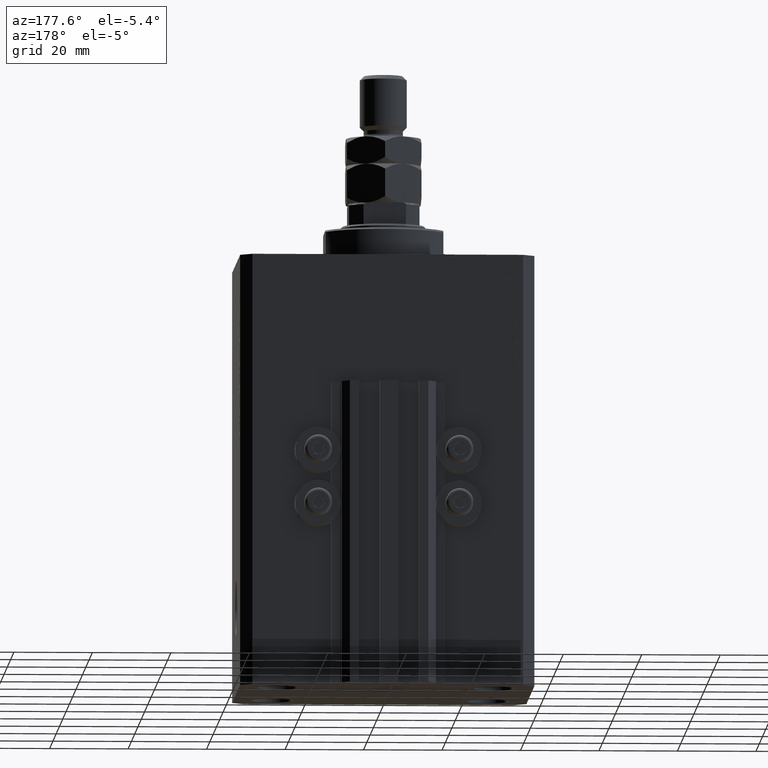
[diagram: clean part render]
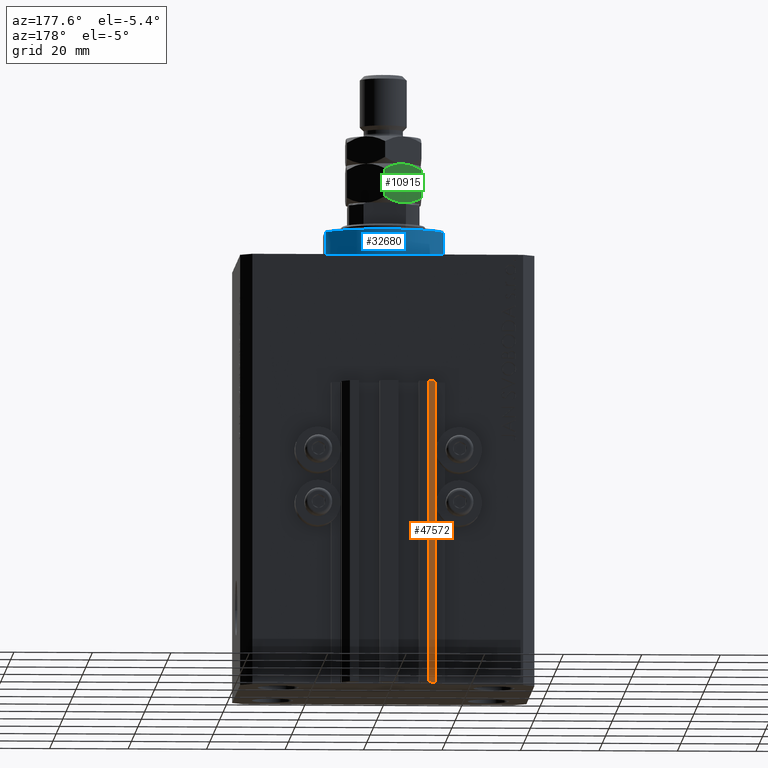
[diagram: same view with three faces highlighted in distinct colors, each labeled with its STEP entity id]
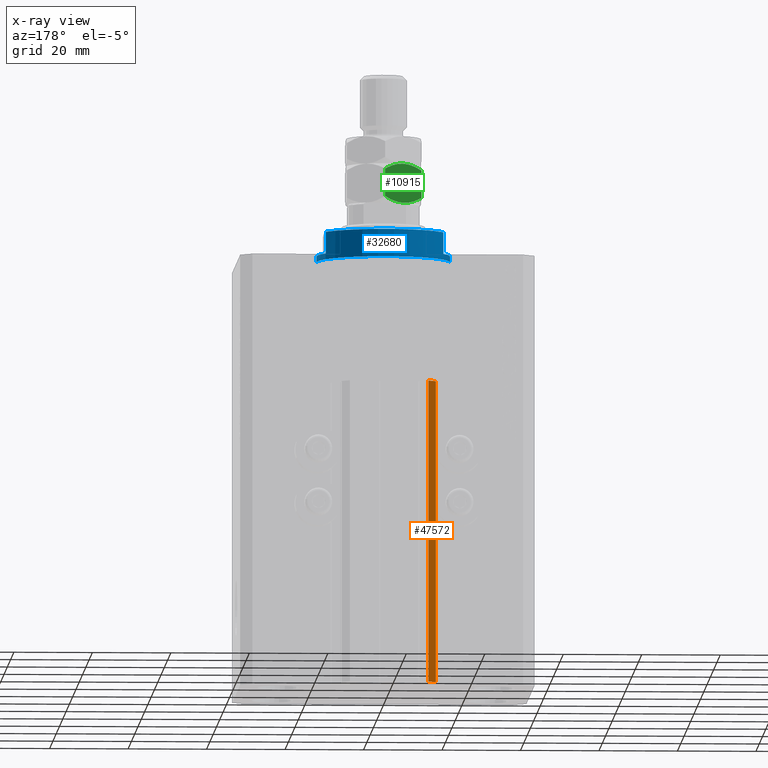
[diagram: x-ray of the same camera — body ghosted, the three highlighted faces saturated]
A machine part, auxiliary view with three faces highlighted in distinct colors.
The next image is the same camera in x-ray (body ghosted, the three faces saturated) — at least one of them is partly hidden behind the body in this view.
Their STEP definitions:

[orange] entity #47572 — the highlighted planar face has unit normal (-0.7071, 0.7071, 0).
#170 = VECTOR ( 'NONE', #43407, 1000.000000000000227 ) ;
#5188 = CARTESIAN_POINT ( 'NONE',  ( -12.00000000000000000, 33.49999999999998579, -110.0000000000000000 ) ) ;
#5846 = CARTESIAN_POINT ( 'NONE',  ( -10.00000000000000000, 35.50000000000000000, -110.0000000000000000 ) ) ;
#6443 = VERTEX_POINT ( 'NONE', #5188 ) ;
#8134 = DIRECTION ( 'NONE',  ( 0.000000000000000000, 0.000000000000000000, 1.000000000000000000 ) ) ;
#8465 = CARTESIAN_POINT ( 'NONE',  ( -10.00000000000000000, 35.50000000000000000, -33.00000000000000000 ) ) ;
#9984 = VECTOR ( 'NONE', #25163, 1000.000000000000000 ) ;
#10099 = VERTEX_POINT ( 'NONE', #41039 ) ;
#10994 = ORIENTED_EDGE ( 'NONE', *, *, #30362, .T. ) ;
#11456 = DIRECTION ( 'NONE',  ( -0.7071067811865460184, -0.7071067811865490160, 0.000000000000000000 ) ) ;
#13259 = DIRECTION ( 'NONE',  ( -0.7071067811865490160, 0.7071067811865461294, 0.000000000000000000 ) ) ;
#16287 = VERTEX_POINT ( 'NONE', #24324 ) ;
#17784 = CARTESIAN_POINT ( 'NONE',  ( -10.00000000000000000, 35.50000000000000000, -110.0000000000000000 ) ) ;
#18359 = VECTOR ( 'NONE', #11456, 1000.000000000000227 ) ;
#19245 = ORIENTED_EDGE ( 'NONE', *, *, #48274, .F. ) ;
#20465 = CARTESIAN_POINT ( 'NONE',  ( -10.00000000000000000, 35.50000000000000000, -110.0000000000000000 ) ) ;
#20656 = FACE_OUTER_BOUND ( 'NONE', #21713, .T. ) ;
#20895 = DIRECTION ( 'NONE',  ( -0.7071067811865460184, -0.7071067811865489050, 0.000000000000000000 ) ) ;
#21713 = EDGE_LOOP ( 'NONE', ( #19245, #45127, #30813, #10994 ) ) ;
#24324 = CARTESIAN_POINT ( 'NONE',  ( -12.00000000000000000, 33.49999999999998579, -33.00000000000000000 ) ) ;
#24891 = LINE ( 'NONE', #20465, #170 ) ;
#25163 = DIRECTION ( 'NONE',  ( 0.000000000000000000, 0.000000000000000000, 1.000000000000000000 ) ) ;
#25335 = PLANE ( 'NONE',  #41967 ) ;
#25363 = EDGE_CURVE ( 'NONE', #10099, #41197, #25909, .T. ) ;
#25893 = CARTESIAN_POINT ( 'NONE',  ( -10.00000000000000000, 35.50000000000000000, -33.00000000000000000 ) ) ;
#25909 = LINE ( 'NONE', #17784, #9984 ) ;
#30362 = EDGE_CURVE ( 'NONE', #6443, #16287, #38705, .T. ) ;
#30813 = ORIENTED_EDGE ( 'NONE', *, *, #46460, .T. ) ;
#37832 = LINE ( 'NONE', #8465, #18359 ) ;
#38230 = CARTESIAN_POINT ( 'NONE',  ( -12.00000000000000000, 33.49999999999998579, -110.0000000000000000 ) ) ;
#38705 = LINE ( 'NONE', #38230, #47064 ) ;
#41039 = CARTESIAN_POINT ( 'NONE',  ( -10.00000000000000000, 35.50000000000000000, -110.0000000000000000 ) ) ;
#41197 = VERTEX_POINT ( 'NONE', #25893 ) ;
#41967 = AXIS2_PLACEMENT_3D ( 'NONE', #5846, #13259, #20895 ) ;
#43407 = DIRECTION ( 'NONE',  ( -0.7071067811865460184, -0.7071067811865490160, 0.000000000000000000 ) ) ;
#45127 = ORIENTED_EDGE ( 'NONE', *, *, #25363, .F. ) ;
#46460 = EDGE_CURVE ( 'NONE', #10099, #6443, #24891, .T. ) ;
#47064 = VECTOR ( 'NONE', #8134, 1000.000000000000000 ) ;
#47572 = ADVANCED_FACE ( 'NONE', ( #20656 ), #25335, .T. ) ;
#48274 = EDGE_CURVE ( 'NONE', #41197, #16287, #37832, .T. ) ;

[blue] entity #32680 — the highlighted cylindrical surface (partial cylindrical patch) has radius 17 mm, axis along (0, 0, -1).
#1572 = ORIENTED_EDGE ( 'NONE', *, *, #47519, .T. ) ;
#4316 = EDGE_CURVE ( 'NONE', #10806, #42552, #33387, .T. ) ;
#4879 = DIRECTION ( 'NONE',  ( -0.000000000000000000, -0.000000000000000000, 1.000000000000000000 ) ) ;
#6104 = CARTESIAN_POINT ( 'NONE',  ( -14.99999999999999645, 8.000000000000003553, -2.000000000000000000 ) ) ;
#7557 = CYLINDRICAL_SURFACE ( 'NONE', #21939, 17.00000000000000000 ) ;
#7750 = CARTESIAN_POINT ( 'NONE',  ( -15.00000000000000000, 8.000000000000001776, -7.500000000000007105 ) ) ;
#7875 = AXIS2_PLACEMENT_3D ( 'NONE', #47473, #10205, #47717 ) ;
#8260 = LINE ( 'NONE', #43266, #8470 ) ;
#8470 = VECTOR ( 'NONE', #42539, 1000.000000000000000 ) ;
#9171 = VERTEX_POINT ( 'NONE', #16415 ) ;
#9566 = ORIENTED_EDGE ( 'NONE', *, *, #14466, .T. ) ;
#10205 = DIRECTION ( 'NONE',  ( -0.000000000000000000, -0.000000000000000000, -1.000000000000000000 ) ) ;
#10760 = CARTESIAN_POINT ( 'NONE',  ( 15.00000000000000000, 8.000000000000001776, -7.500000000000007105 ) ) ;
#10806 = VERTEX_POINT ( 'NONE', #10760 ) ;
#11159 = VECTOR ( 'NONE', #28652, 1000.000000000000000 ) ;
#13878 = DIRECTION ( 'NONE',  ( -0.000000000000000000, -0.000000000000000000, 1.000000000000000000 ) ) ;
#14466 = EDGE_CURVE ( 'NONE', #42552, #15899, #40005, .T. ) ;
#15612 = ORIENTED_EDGE ( 'NONE', *, *, #44431, .F. ) ;
#15899 = VERTEX_POINT ( 'NONE', #6104 ) ;
#16415 = CARTESIAN_POINT ( 'NONE',  ( -17.00000000000000000, 2.081899558550500280E-15, -0.5000000000000004441 ) ) ;
#17264 = CARTESIAN_POINT ( 'NONE',  ( 0.000000000000000000, 0.000000000000000000, -8.000000000000000000 ) ) ;
#17798 = LINE ( 'NONE', #32584, #11159 ) ;
#18763 = CARTESIAN_POINT ( 'NONE',  ( 17.00000000000000000, 0.000000000000000000, -2.000000000000000000 ) ) ;
#19781 = CARTESIAN_POINT ( 'NONE',  ( 0.000000000000000000, 0.000000000000000000, -2.000000000000000000 ) ) ;
#21939 = AXIS2_PLACEMENT_3D ( 'NONE', #17264, #22603, #28848 ) ;
#22603 = DIRECTION ( 'NONE',  ( -0.000000000000000000, -0.000000000000000000, 1.000000000000000000 ) ) ;
#22710 = EDGE_LOOP ( 'NONE', ( #44788, #1572, #41323, #15612, #42007, #22937, #32500, #9566 ) ) ;
#22937 = ORIENTED_EDGE ( 'NONE', *, *, #31102, .F. ) ;
#22951 = AXIS2_PLACEMENT_3D ( 'NONE', #28347, #40166, #32774 ) ;
#23701 = DIRECTION ( 'NONE',  ( -1.000000000000000000, 0.000000000000000000, 0.000000000000000000 ) ) ;
#24057 = CARTESIAN_POINT ( 'NONE',  ( 0.000000000000000000, 0.000000000000000000, -7.500000000000007105 ) ) ;
#24366 = VERTEX_POINT ( 'NONE', #31584 ) ;
#28347 = CARTESIAN_POINT ( 'NONE',  ( 0.000000000000000000, 0.000000000000000000, -2.000000000000000000 ) ) ;
#28652 = DIRECTION ( 'NONE',  ( -0.000000000000000000, -0.000000000000000000, 1.000000000000000000 ) ) ;
#28848 = DIRECTION ( 'NONE',  ( 1.000000000000000000, 0.000000000000000000, 0.000000000000000000 ) ) ;
#29152 = CIRCLE ( 'NONE', #7875, 17.00000000000000000 ) ;
#29454 = AXIS2_PLACEMENT_3D ( 'NONE', #24057, #31464, #39831 ) ;
#30942 = VECTOR ( 'NONE', #4879, 1000.000000000000000 ) ;
#31102 = EDGE_CURVE ( 'NONE', #10806, #44660, #8260, .T. ) ;
#31317 = VERTEX_POINT ( 'NONE', #35736 ) ;
#31464 = DIRECTION ( 'NONE',  ( 0.000000000000000000, 0.000000000000000000, 1.000000000000000000 ) ) ;
#31584 = CARTESIAN_POINT ( 'NONE',  ( 17.00000000000000000, 0.000000000000000000, -0.5000000000000004441 ) ) ;
#32500 = ORIENTED_EDGE ( 'NONE', *, *, #4316, .T. ) ;
#32584 = CARTESIAN_POINT ( 'NONE',  ( 17.00000000000000000, 0.000000000000000000, -8.000000000000000000 ) ) ;
#32680 = ADVANCED_FACE ( 'NONE', ( #40430 ), #7557, .T. ) ;
#32774 = DIRECTION ( 'NONE',  ( -1.000000000000000000, 0.000000000000000000, 0.000000000000000000 ) ) ;
#33194 = CIRCLE ( 'NONE', #22951, 17.00000000000000000 ) ;
#33387 = CIRCLE ( 'NONE', #29454, 17.00000000000000000 ) ;
#34500 = LINE ( 'NONE', #38432, #30942 ) ;
#34676 = EDGE_CURVE ( 'NONE', #44660, #34875, #38539, .T. ) ;
#34814 = DIRECTION ( 'NONE',  ( 0.000000000000000000, 0.000000000000000000, -1.000000000000000000 ) ) ;
#34875 = VERTEX_POINT ( 'NONE', #18763 ) ;
#35736 = CARTESIAN_POINT ( 'NONE',  ( -17.00000000000000000, 2.081899558550500280E-15, -2.000000000000000000 ) ) ;
#36168 = AXIS2_PLACEMENT_3D ( 'NONE', #19781, #34814, #23701 ) ;
#36303 = CARTESIAN_POINT ( 'NONE',  ( -15.00000000000000000, 8.000000000000001776, -8.000000000000000000 ) ) ;
#37746 = EDGE_CURVE ( 'NONE', #9171, #24366, #29152, .T. ) ;
#38432 = CARTESIAN_POINT ( 'NONE',  ( -17.00000000000000000, 2.081899558550500280E-15, -8.000000000000000000 ) ) ;
#38539 = CIRCLE ( 'NONE', #36168, 17.00000000000000000 ) ;
#39831 = DIRECTION ( 'NONE',  ( -1.000000000000000000, 0.000000000000000000, 0.000000000000000000 ) ) ;
#40005 = LINE ( 'NONE', #36303, #42504 ) ;
#40166 = DIRECTION ( 'NONE',  ( 0.000000000000000000, 0.000000000000000000, -1.000000000000000000 ) ) ;
#40430 = FACE_OUTER_BOUND ( 'NONE', #22710, .T. ) ;
#40890 = EDGE_CURVE ( 'NONE', #31317, #15899, #33194, .T. ) ;
#41323 = ORIENTED_EDGE ( 'NONE', *, *, #37746, .T. ) ;
#42007 = ORIENTED_EDGE ( 'NONE', *, *, #34676, .F. ) ;
#42504 = VECTOR ( 'NONE', #13878, 1000.000000000000000 ) ;
#42539 = DIRECTION ( 'NONE',  ( -0.000000000000000000, -0.000000000000000000, 1.000000000000000000 ) ) ;
#42552 = VERTEX_POINT ( 'NONE', #7750 ) ;
#43266 = CARTESIAN_POINT ( 'NONE',  ( 15.00000000000000000, 8.000000000000001776, -8.000000000000000000 ) ) ;
#44431 = EDGE_CURVE ( 'NONE', #34875, #24366, #17798, .T. ) ;
#44660 = VERTEX_POINT ( 'NONE', #46609 ) ;
#44788 = ORIENTED_EDGE ( 'NONE', *, *, #40890, .F. ) ;
#46609 = CARTESIAN_POINT ( 'NONE',  ( 14.99999999999999645, 8.000000000000003553, -2.000000000000000000 ) ) ;
#47473 = CARTESIAN_POINT ( 'NONE',  ( 0.000000000000000000, 0.000000000000000000, -0.5000000000000004441 ) ) ;
#47519 = EDGE_CURVE ( 'NONE', #31317, #9171, #34500, .T. ) ;
#47717 = DIRECTION ( 'NONE',  ( 1.000000000000000000, 0.000000000000000000, 0.000000000000000000 ) ) ;

[green] entity #10915 — the highlighted planar face has unit normal (0.5, -0.866, 0).
#654 = VERTEX_POINT ( 'NONE', #22332 ) ;
#1174 = CARTESIAN_POINT ( 'NONE',  ( -4.749999999999993783, 8.227241335952166779, 10.00000000000000000 ) ) ;
#1363 = CARTESIAN_POINT ( 'NONE',  ( -6.388382028668171841, 7.281321030665156790, 9.854124384224531852 ) ) ;
#2559 = LINE ( 'NONE', #17134, #10221 ) ;
#2738 = VERTEX_POINT ( 'NONE', #10057 ) ;
#3134 = ORIENTED_EDGE ( 'NONE', *, *, #38007, .F. ) ;
#3744 = CARTESIAN_POINT ( 'NONE',  ( -9.500000000000000000, 5.484827557301450440, 1.469655114602887114 ) ) ;
#4160 = CARTESIAN_POINT ( 'NONE',  ( -3.911732050025008789, 8.711215562523269895, 9.962294231267003752 ) ) ;
#4165 = CARTESIAN_POINT ( 'NONE',  ( -0.7440058743609621050, 10.54010312276192174, 1.040103122761827148 ) ) ;
#5134 = ORIENTED_EDGE ( 'NONE', *, *, #22395, .T. ) ;
#7614 = CARTESIAN_POINT ( 'NONE',  ( -3.111617971331824162, 9.173161641239182984, 0.1458756157754679816 ) ) ;
#8569 = CARTESIAN_POINT ( 'NONE',  ( -4.333978297711722938, 8.467431577757031036, 9.999999999999998224 ) ) ;
#10057 = CARTESIAN_POINT ( 'NONE',  ( -3.412354640325339130E-17, 10.96965511460288667, 8.530344885397118659 ) ) ;
#10221 = VECTOR ( 'NONE', #36099, 1000.000000000000000 ) ;
#10416 = CARTESIAN_POINT ( 'NONE',  ( -5.588267949974988547, 7.743267109381076096, 0.03770576873300184734 ) ) ;
#10915 = ADVANCED_FACE ( 'NONE', ( #32708 ), #19574, .F. ) ;
#11565 = EDGE_CURVE ( 'NONE', #654, #42720, #42400, .T. ) ;
#11994 = EDGE_LOOP ( 'NONE', ( #34348, #19369, #3134, #37500, #5134, #21363 ) ) ;
#12966 = CARTESIAN_POINT ( 'NONE',  ( -9.500000000000000000, 5.484827557301450440, 8.530344885397113330 ) ) ;
#14534 = EDGE_CURVE ( 'NONE', #37938, #654, #30481, .T. ) ;
#14625 = CARTESIAN_POINT ( 'NONE',  ( -7.993405681187618406, 6.354660192827338960, 0.6741748824712797683 ) ) ;
#14863 = CARTESIAN_POINT ( 'NONE',  ( -8.755131854751338594, 5.914877381471542961, 1.039605290432796147 ) ) ;
#15107 = CARTESIAN_POINT ( 'NONE',  ( -6.809745054052670277, 7.038046974532860212, 0.2834621384311906689 ) ) ;
#15523 = CARTESIAN_POINT ( 'NONE',  ( -2.690254945947323506, 9.416435697371474234, 9.716537861568806278 ) ) ;
#17134 = CARTESIAN_POINT ( 'NONE',  ( -9.500000000000000000, 5.484827557301449552, 10.00000000000000000 ) ) ;
#17506 = CARTESIAN_POINT ( 'NONE',  ( 0.000000000000000000, 10.96965511460288667, 10.00000000000000000 ) ) ;
#18804 = CARTESIAN_POINT ( 'NONE',  ( -6.408273631871772125, 7.269836608200945349, 0.1797418547120365750 ) ) ;
#19369 = ORIENTED_EDGE ( 'NONE', *, *, #37669, .F. ) ;
#19574 = PLANE ( 'NONE',  #25068 ) ;
#20384 = CARTESIAN_POINT ( 'NONE',  ( -4.749999999999993783, 8.227241335952166779, 10.00000000000000000 ) ) ;
#21363 = ORIENTED_EDGE ( 'NONE', *, *, #11565, .F. ) ;
#22001 = B_SPLINE_CURVE_WITH_KNOTS ( 'NONE', 3,
 ( #40975, #34724, #42374, #15523, #34491, #4160, #8569, #1174 ),
 .UNSPECIFIED., .F., .F.,
 ( 4, 2, 2, 4 ),
 ( 2.544312669947217931E-07, 0.002843014744722341131, 0.004264394901450013070, 0.005685775058177684575 ),
 .UNSPECIFIED. ) ;
#22332 = CARTESIAN_POINT ( 'NONE',  ( -4.749999999999995559, 8.227241335952170331, 0.000000000000000000 ) ) ;
#22395 = EDGE_CURVE ( 'NONE', #2738, #42720, #39681, .T. ) ;
#22663 = CARTESIAN_POINT ( 'NONE',  ( -1.509821400858455398, 10.09795932238899852, 0.6716369694512650534 ) ) ;
#23509 = EDGE_CURVE ( 'NONE', #2738, #36473, #22001, .T. ) ;
#23858 = VECTOR ( 'NONE', #47093, 1000.000000000000000 ) ;
#25068 = AXIS2_PLACEMENT_3D ( 'NONE', #45241, #41773, #26980 ) ;
#26135 = CARTESIAN_POINT ( 'NONE',  ( 7.043584025308272669E-16, 10.96965511460288667, 1.469655114602882007 ) ) ;
#26980 = DIRECTION ( 'NONE',  ( 0.8660254037844389297, 0.4999999999999994449, 0.000000000000000000 ) ) ;
#27719 = CARTESIAN_POINT ( 'NONE',  ( 7.043584025308272669E-16, 10.96965511460288667, 1.469655114602882007 ) ) ;
#28667 = CARTESIAN_POINT ( 'NONE',  ( -4.749999999999993783, 8.227241335952166779, 10.00000000000000000 ) ) ;
#29896 = CARTESIAN_POINT ( 'NONE',  ( -4.749999999999995559, 8.227241335952170331, 0.000000000000000000 ) ) ;
#30481 = B_SPLINE_CURVE_WITH_KNOTS ( 'NONE', 3,
 ( #3744, #14863, #14625, #15107, #18804, #10416, #41233, #29896 ),
 .UNSPECIFIED., .F., .F.,
 ( 4, 2, 2, 4 ),
 ( 2.544312669946945821E-07, 0.002843014744722347636, 0.004264394901450021744, 0.005685775058177695851 ),
 .UNSPECIFIED. ) ;
#32695 = B_SPLINE_CURVE_WITH_KNOTS ( 'NONE', 3,
 ( #28667, #35641, #1363, #42810, #36123, #12966 ),
 .UNSPECIFIED., .F., .F.,
 ( 4, 2, 4 ),
 ( 0.005685775058177684575, 0.008508623398180318459, 0.01133147173818295321 ),
 .UNSPECIFIED. ) ;
#32708 = FACE_OUTER_BOUND ( 'NONE', #11994, .T. ) ;
#34011 = CARTESIAN_POINT ( 'NONE',  ( -3.923784602134044341, 8.704257018318687145, 8.233160247311796338E-16 ) ) ;
#34348 = ORIENTED_EDGE ( 'NONE', *, *, #14534, .F. ) ;
#34491 = CARTESIAN_POINT ( 'NONE',  ( -3.091726368128223879, 9.184646063703393537, 9.820258145287965590 ) ) ;
#34724 = CARTESIAN_POINT ( 'NONE',  ( -0.7448681452486597410, 10.53960529043279770, 8.960394709567207627 ) ) ;
#35641 = CARTESIAN_POINT ( 'NONE',  ( -5.576215397865946777, 7.750225653585649077, 10.00000000000000000 ) ) ;
#36099 = DIRECTION ( 'NONE',  ( -0.000000000000000000, -0.000000000000000000, -1.000000000000000000 ) ) ;
#36123 = CARTESIAN_POINT ( 'NONE',  ( -8.755994125639032788, 5.914379549142415371, 8.959896877238170632 ) ) ;
#36473 = VERTEX_POINT ( 'NONE', #20384 ) ;
#37500 = ORIENTED_EDGE ( 'NONE', *, *, #23509, .F. ) ;
#37669 = EDGE_CURVE ( 'NONE', #43065, #37938, #2559, .T. ) ;
#37675 = CARTESIAN_POINT ( 'NONE',  ( -9.500000000000000000, 5.484827557301450440, 8.530344885397113330 ) ) ;
#37938 = VERTEX_POINT ( 'NONE', #42487 ) ;
#38007 = EDGE_CURVE ( 'NONE', #36473, #43065, #32695, .T. ) ;
#39681 = LINE ( 'NONE', #17506, #23858 ) ;
#40975 = CARTESIAN_POINT ( 'NONE',  ( -3.412354640325339130E-17, 10.96965511460288667, 8.530344885397118659 ) ) ;
#41233 = CARTESIAN_POINT ( 'NONE',  ( -5.166021702288269957, 7.987051094147307850, 9.131015171401357655E-16 ) ) ;
#41773 = DIRECTION ( 'NONE',  ( 0.4999999999999995004, -0.8660254037844390407, 0.000000000000000000 ) ) ;
#42374 = CARTESIAN_POINT ( 'NONE',  ( -1.506594318812380706, 10.09982247907699993, 9.325825117528726338 ) ) ;
#42400 = B_SPLINE_CURVE_WITH_KNOTS ( 'NONE', 3,
 ( #44883, #34011, #7614, #22663, #4165, #26135 ),
 .UNSPECIFIED., .F., .F.,
 ( 4, 2, 4 ),
 ( 0.005685775058177695851, 0.008508623398180325398, 0.01133147173818295494 ),
 .UNSPECIFIED. ) ;
#42487 = CARTESIAN_POINT ( 'NONE',  ( -9.500000000000000000, 5.484827557301450440, 1.469655114602887114 ) ) ;
#42720 = VERTEX_POINT ( 'NONE', #27719 ) ;
#42810 = CARTESIAN_POINT ( 'NONE',  ( -7.990178599141542826, 6.356523349515339483, 9.328363030548731061 ) ) ;
#43065 = VERTEX_POINT ( 'NONE', #37675 ) ;
#44883 = CARTESIAN_POINT ( 'NONE',  ( -4.749999999999995559, 8.227241335952170331, 0.000000000000000000 ) ) ;
#45241 = CARTESIAN_POINT ( 'NONE',  ( 0.000000000000000000, 10.96965511460288667, 10.00000000000000000 ) ) ;
#47093 = DIRECTION ( 'NONE',  ( -0.000000000000000000, -0.000000000000000000, -1.000000000000000000 ) ) ;